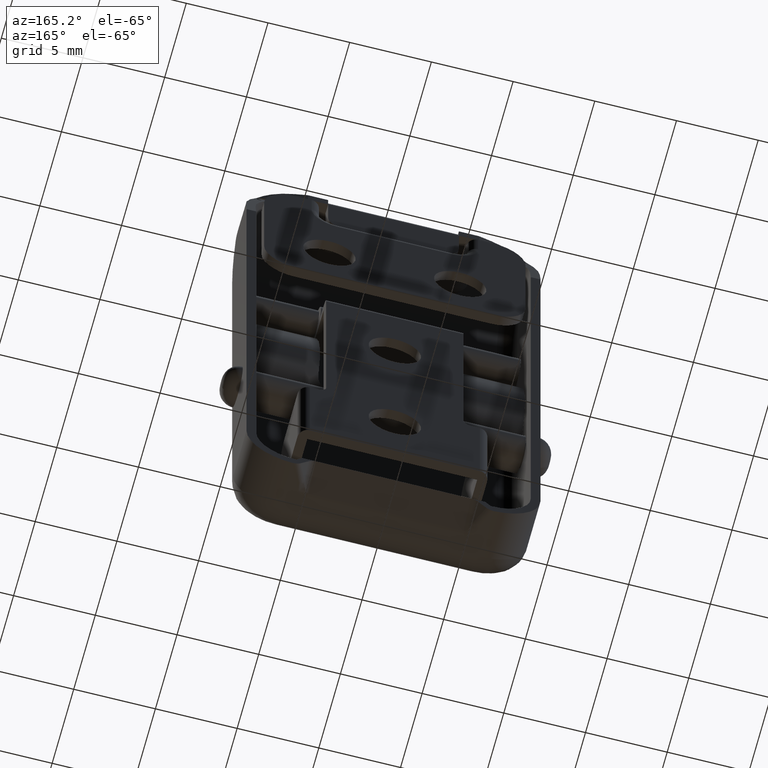
[diagram: clean part render]
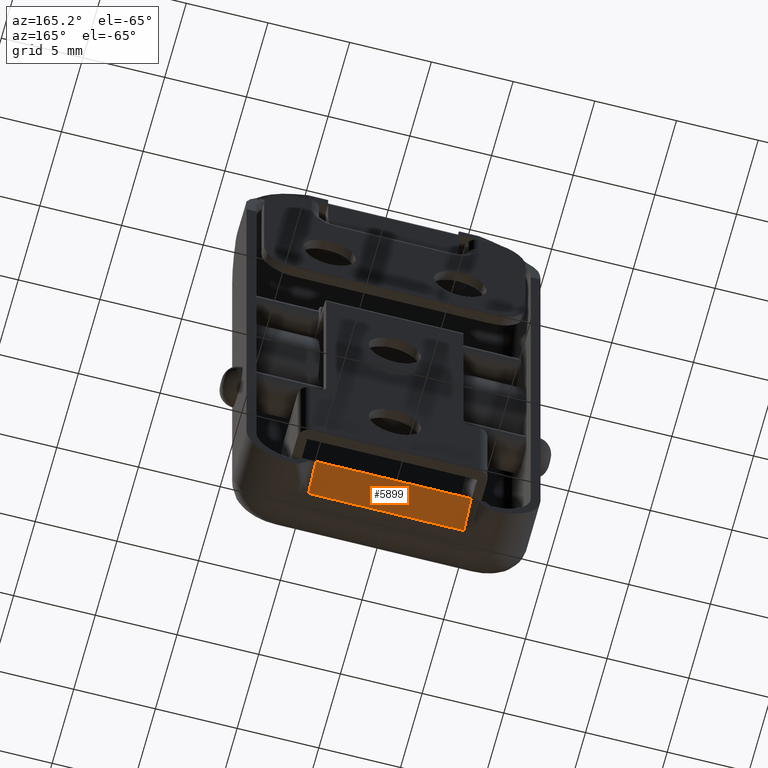
[diagram: same view with one face highlighted and labeled with its STEP entity id]
A machine part, auxiliary view. The second image highlights one B-rep face of the part: STEP entity #5899.
In plain terms, the highlighted planar face has unit normal (0, -0.4759, 0.8795).
Its self-contained STEP definition (entity closure, byte-faithful):
#176 = CARTESIAN_POINT ( 'NONE',  ( -4.751470498727739400, 2.300006252357360100, -23.49304136415245000 ) ) ;
#426 = ORIENTED_EDGE ( 'NONE', *, *, #732, .T. ) ;
#658 = LINE ( 'NONE', #2290, #3115 ) ;
#712 = CARTESIAN_POINT ( 'NONE',  ( 994.0000013638479000, 0.4519296454720469500, -24.49304136415245000 ) ) ;
#732 = EDGE_CURVE ( 'NONE', #1530, #1477, #5093, .T. ) ;
#761 = LINE ( 'NONE', #1915, #4536 ) ;
#1170 = DIRECTION ( 'NONE',  ( -0.0000000000000000000, 0.8794994562316269500, 0.4758998912463339700 ) ) ;
#1363 = ORIENTED_EDGE ( 'NONE', *, *, #1555, .T. ) ;
#1477 = VERTEX_POINT ( 'NONE', #5991 ) ;
#1530 = VERTEX_POINT ( 'NONE', #3875 ) ;
#1555 = EDGE_CURVE ( 'NONE', #5765, #3437, #3387, .T. ) ;
#1915 = CARTESIAN_POINT ( 'NONE',  ( 994.0000013638479000, 2.300006252357360100, -23.49304136415245000 ) ) ;
#1936 = DIRECTION ( 'NONE',  ( 7.850462293419018800E-017, -0.8794994562316269500, -0.4758998912463339700 ) ) ;
#1961 = FACE_OUTER_BOUND ( 'NONE', #2493, .T. ) ;
#2185 = DIRECTION ( 'NONE',  ( 0.0000000000000000000, -0.8794994562316269500, -0.4758998912463339700 ) ) ;
#2290 = CARTESIAN_POINT ( 'NONE',  ( 994.0000013638479000, 0.5855461871052208800, -24.42074103789145000 ) ) ;
#2357 = AXIS2_PLACEMENT_3D ( 'NONE', #712, #5143, #2185 ) ;
#2493 = EDGE_LOOP ( 'NONE', ( #5804, #426, #3057, #1363 ) ) ;
#2790 = DIRECTION ( 'NONE',  ( -1.000000000000000000, -0.0000000000000000000, -0.0000000000000000000 ) ) ;
#2905 = DIRECTION ( 'NONE',  ( -1.000000000000000000, 0.0000000000000000000, 0.0000000000000000000 ) ) ;
#3057 = ORIENTED_EDGE ( 'NONE', *, *, #3183, .F. ) ;
#3115 = VECTOR ( 'NONE', #2790, 1000.000000000000000 ) ;
#3183 = EDGE_CURVE ( 'NONE', #5765, #1477, #761, .T. ) ;
#3387 = LINE ( 'NONE', #3897, #5707 ) ;
#3437 = VERTEX_POINT ( 'NONE', #4699 ) ;
#3875 = CARTESIAN_POINT ( 'NONE',  ( -4.751470498727739400, 0.5855461871052208800, -24.42074103789145000 ) ) ;
#3897 = CARTESIAN_POINT ( 'NONE',  ( 4.751473226424179700, 0.4519296454720480000, -24.49304136415245000 ) ) ;
#4036 = CARTESIAN_POINT ( 'NONE',  ( 4.751473226424179700, 2.300006252357360100, -23.49304136415245000 ) ) ;
#4161 = PLANE ( 'NONE',  #2357 ) ;
#4536 = VECTOR ( 'NONE', #2905, 1000.000000000000000 ) ;
#4699 = CARTESIAN_POINT ( 'NONE',  ( 4.751473226424179700, 0.5855461871052208800, -24.42074103789145000 ) ) ;
#5093 = LINE ( 'NONE', #176, #6259 ) ;
#5143 = DIRECTION ( 'NONE',  ( 0.0000000000000000000, -0.4758998912463339700, 0.8794994562316269500 ) ) ;
#5259 = EDGE_CURVE ( 'NONE', #3437, #1530, #658, .T. ) ;
#5707 = VECTOR ( 'NONE', #1936, 1000.000000000000100 ) ;
#5765 = VERTEX_POINT ( 'NONE', #4036 ) ;
#5804 = ORIENTED_EDGE ( 'NONE', *, *, #5259, .T. ) ;
#5899 = ADVANCED_FACE ( 'NONE', ( #1961 ), #4161, .F. ) ;
#5991 = CARTESIAN_POINT ( 'NONE',  ( -4.751470498727739400, 2.300006252357360100, -23.49304136415245000 ) ) ;
#6259 = VECTOR ( 'NONE', #1170, 1000.000000000000100 ) ;